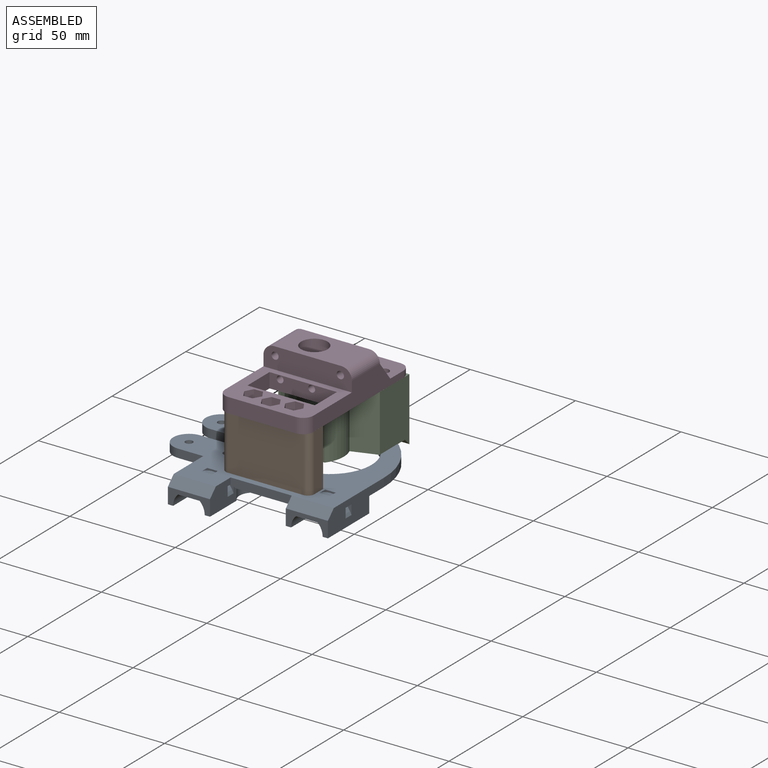
[diagram: assembled view]
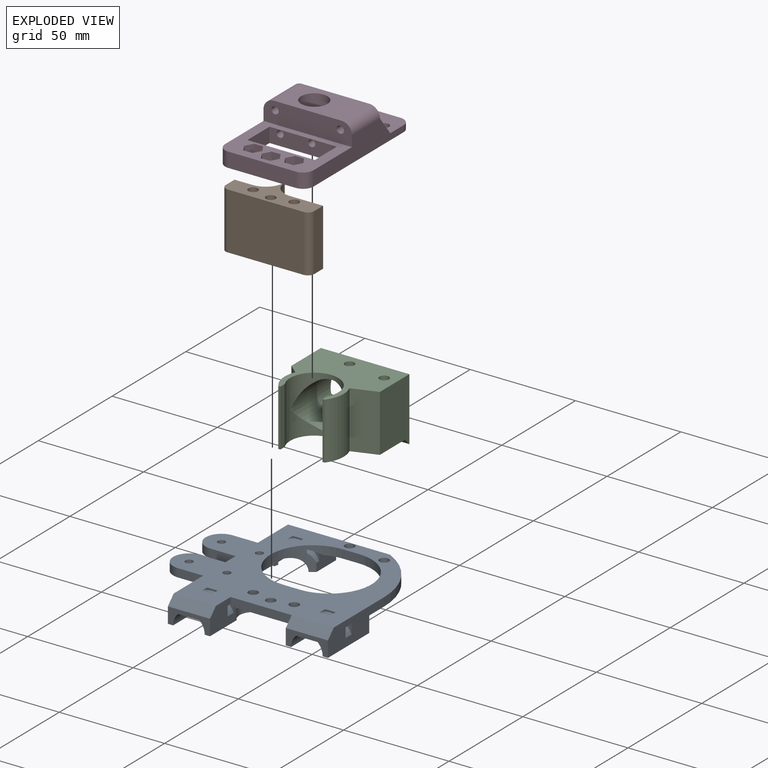
[diagram: exploded view]
GUIDED TOUR — MATED ASSEMBLY (Onshape document 0867b64cb2f1b199d1362405, AutoMate assembly 0867b64cb2f1b199d1362405_662ed76e84d77eaf1cc79daf_90248852c6753fdb1060dd7a_default)

This assembly has 4 components, labeled P0..P3 below (a component is one placed occurrence of a part; the same part can appear more than once), held together by 2 mates. A mate is a constraint between two components; its type names the relative motion it leaves free:
  PLANAR — leaves sliding in the plane through the listed point (normal = the listed direction) and rotation about that normal free.
Axis/direction vectors are unit vectors and 'through' points are millimeter coordinates, both in the assembly's world frame.

MATES
  1. PLANAR "Planar 2": P3 <-> P2, direction (0.000, 0.000, -1.000) through (25.18, -9.65, 2.86) mm
  2. PLANAR "Planar 3": P1 <-> P0, direction (0.000, 0.000, -1.000) through (24.94, -42.22, -24.05) mm

ASSEMBLY ORDER
  1. P2 — the base component [order verified]
  2. P0 [order verified]
  3. P1 [order verified]
  4. P3 [order verified]
(P0 verified with a relaxed clearance tolerance: the source model stores slight part interference there.)
Order-tag legend:
  [order verified] — this step's position reverses a verified removal order: the component was checked to insert without passing through the ones already placed.

Of the 4 components, 2 carry the full construction recipe — the FeatureScript program that regenerates the part's solid from scratch; the rest are supplied as boundary geometry only.
Each toured component is shown spotlighted twice — in the assembled view, then in the exploded view, where a leader line traces a displaced component back to its assembled socket (saturated green if recipe-attached, orange if geometry-only; every other component desaturated gray) — followed by its recipe or geometry summary and the mates that hold it.
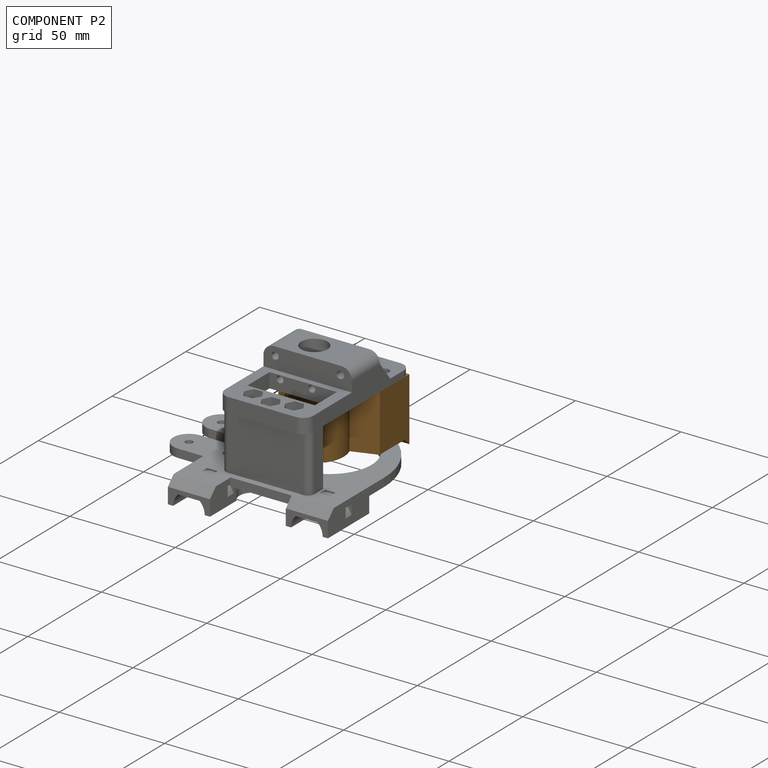
[diagram: component P2 — assembled]
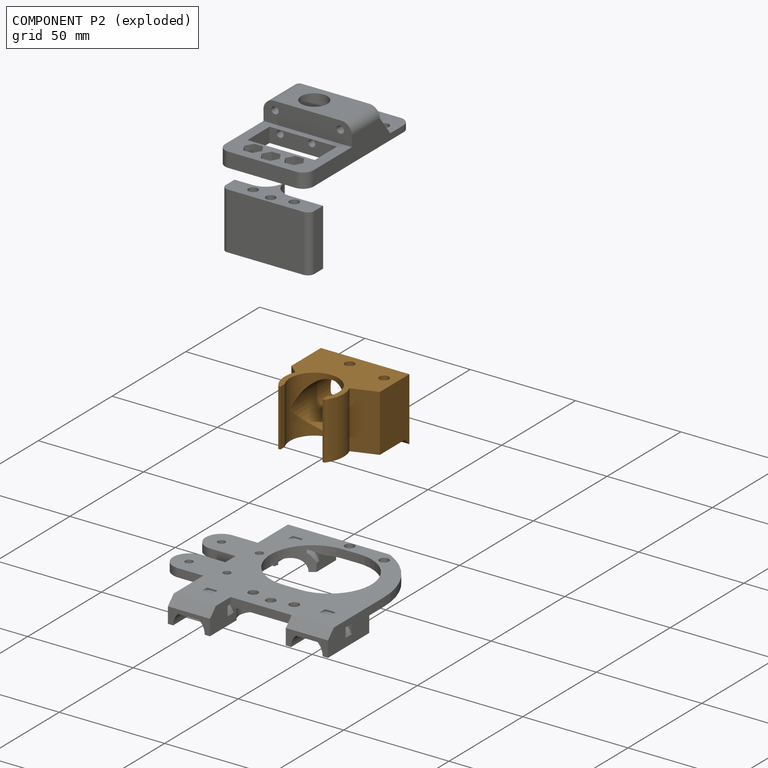
[diagram: component P2 — exploded]
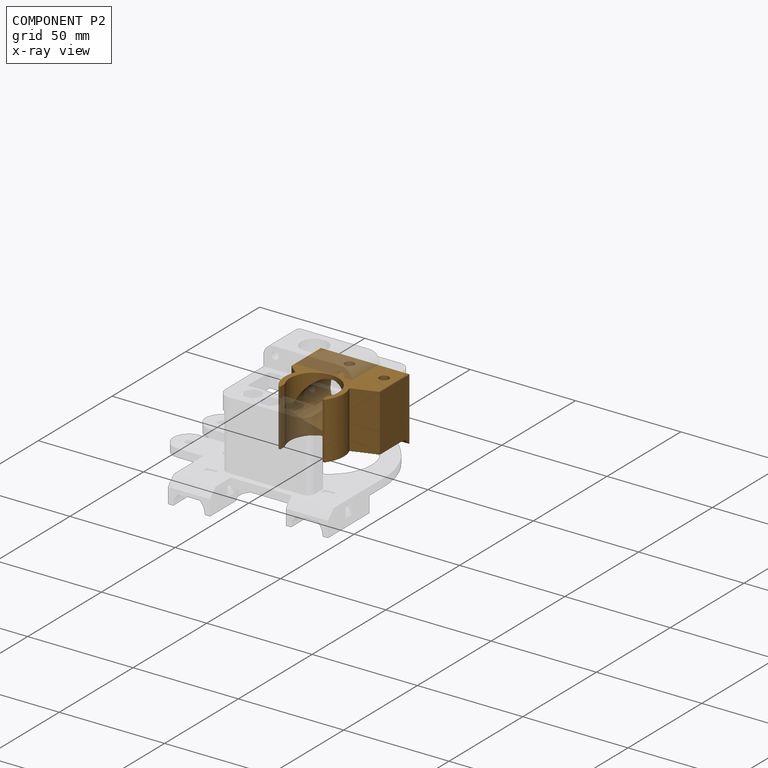
[diagram: component P2 — x-ray view]
COMPONENT P2 — geometry summary (no construction recipe available for this part):
  bounding box: 42.0 x 38.2 x 30.0 mm
  B-rep topology: 1 solid, 29 faces, 170 edges
  volume: 17119 mm^3 (35% of its bounding box)
Held by: PLANAR mate "Planar 2" to P3.
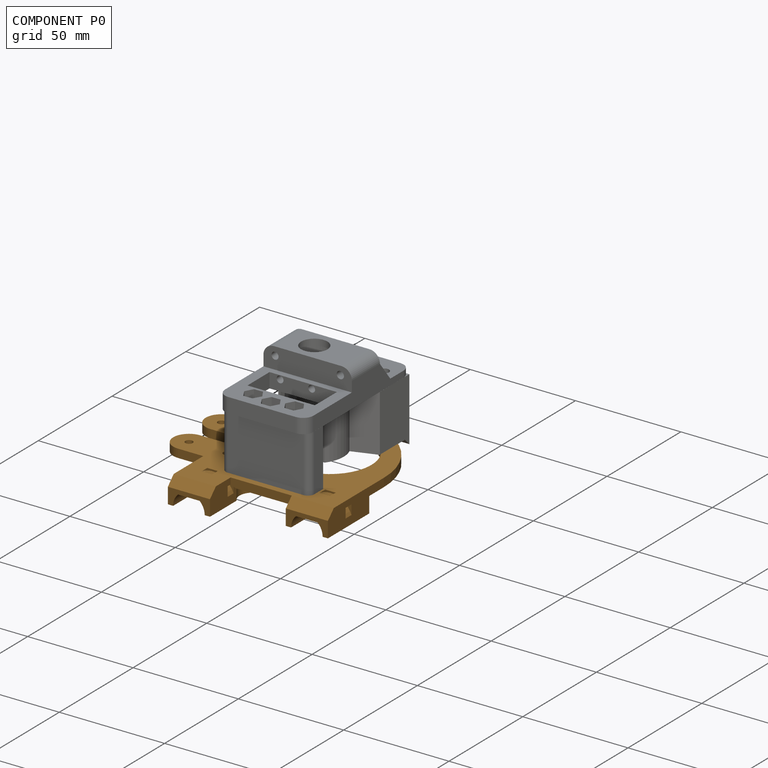
[diagram: component P0 — assembled]
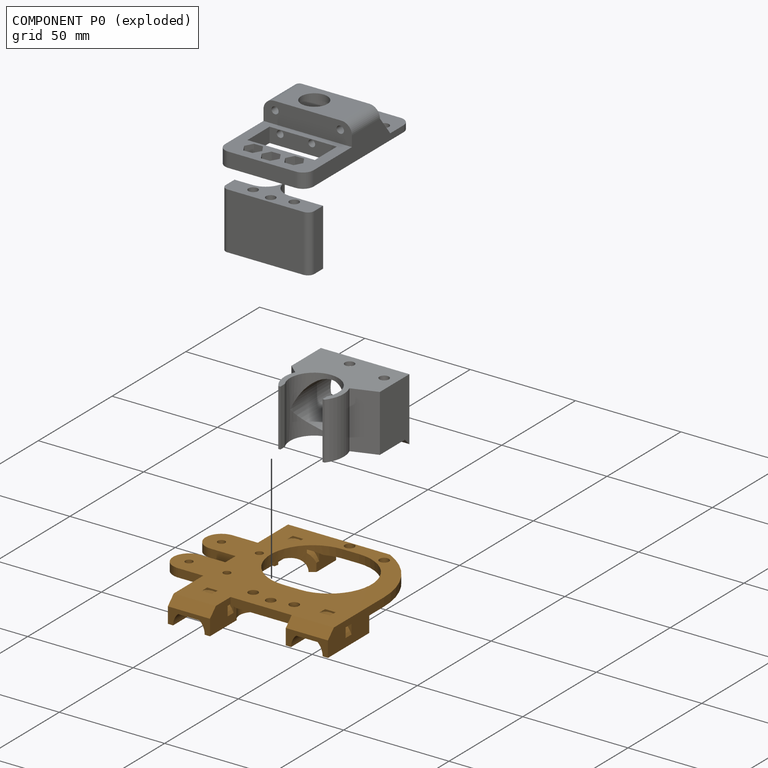
[diagram: component P0 — exploded]
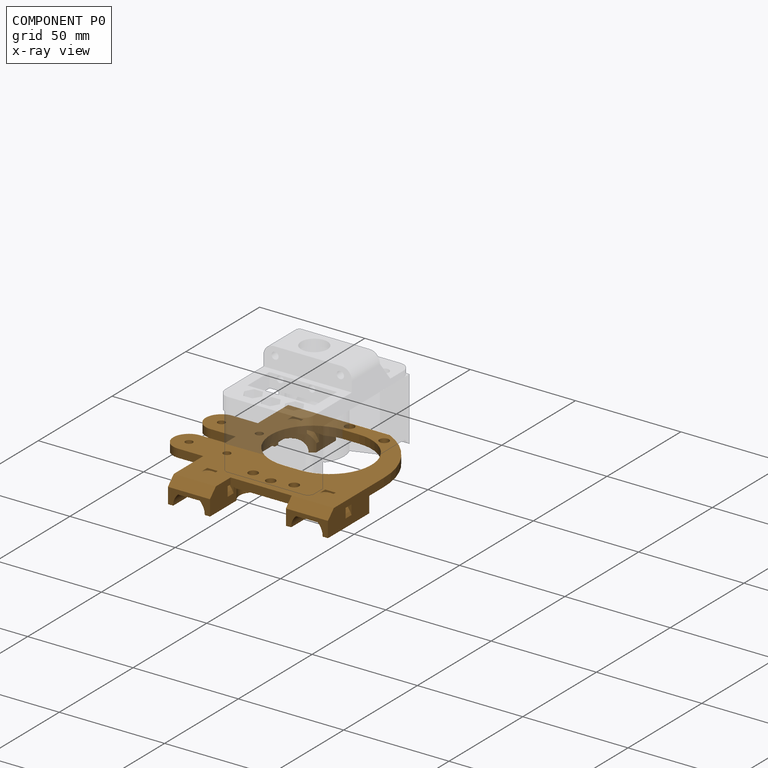
[diagram: component P0 — x-ray view]
COMPONENT P0 — geometry summary (no construction recipe available for this part):
  bounding box: 88.6 x 85.6 x 11.6 mm
  B-rep topology: 1 solid, 107 faces, 654 edges
  volume: 18980 mm^3 (22% of its bounding box)
Held by: PLANAR mate "Planar 3" to P1.
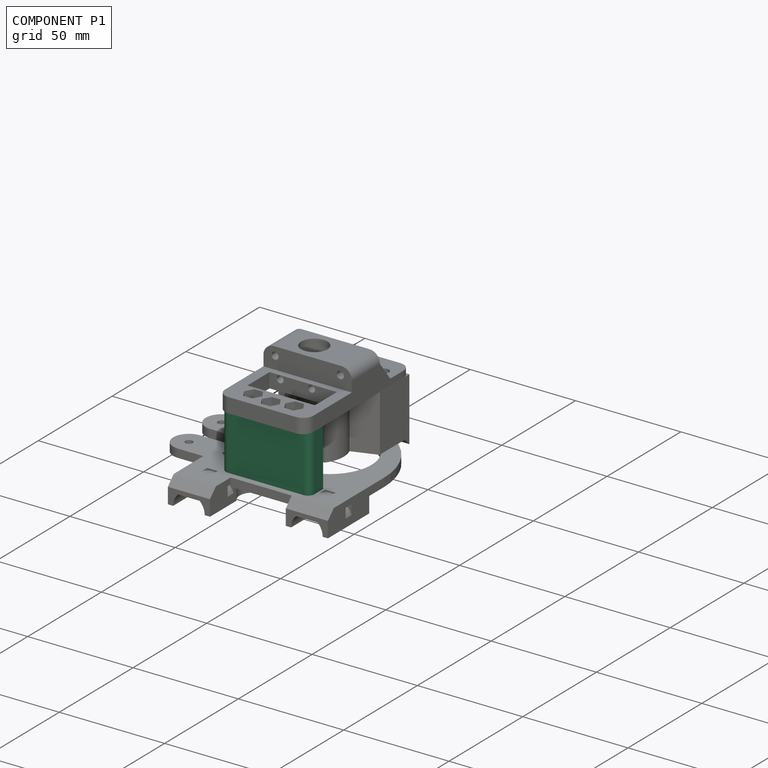
[diagram: component P1 — assembled]
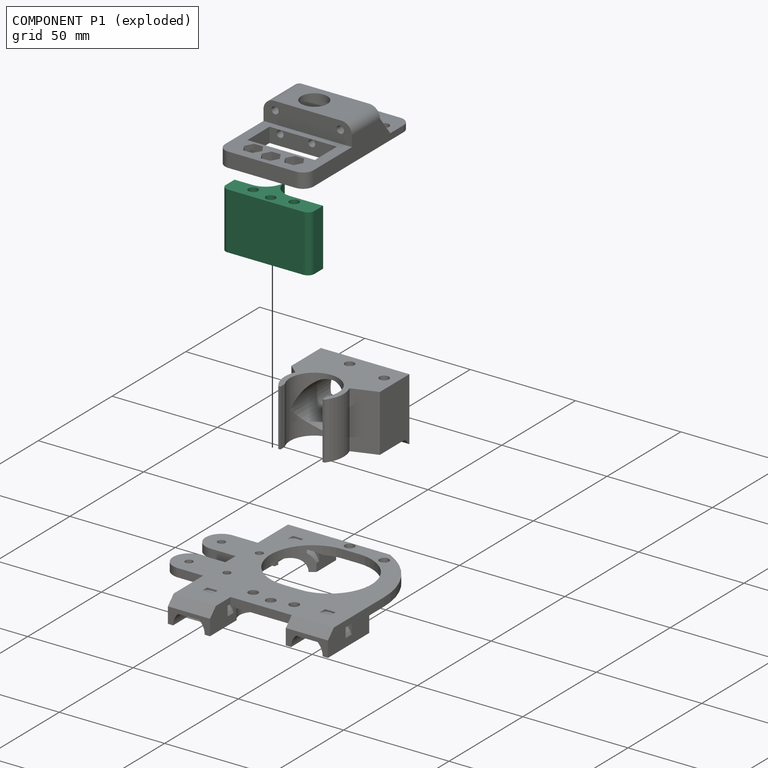
[diagram: component P1 — exploded]
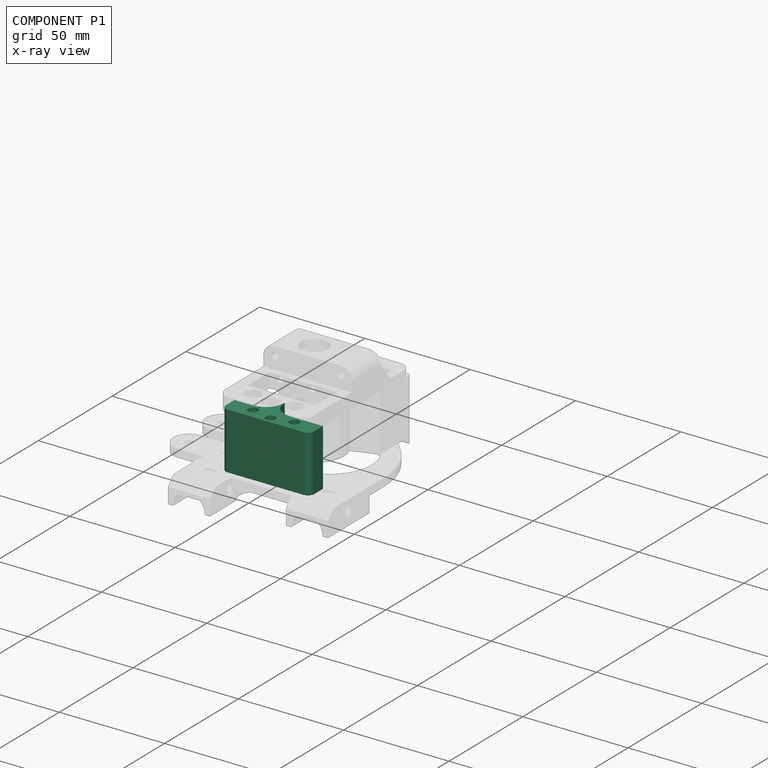
[diagram: component P1 — x-ray view]
COMPONENT P1 — recipe-attached (CADFS 00869236, mesh-verified: the recipe's output STEP matches this component's geometry to below the mesh-comparison resolution (tessellation chordal tolerance ~0.0796 mm)).
Held by: PLANAR mate "Planar 3" to P0.
Construction recipe (FeatureScript — the CAD program that rebuilds this solid; sketch coordinates are in the units given by the * unit suffixes, e.g. mm):

FeatureScript 1511;
import(path : "onshape/std/geometry.fs", version : "1511.0");
import(path : "onshape/std/common.fs", version : "1511.0");
const mm = millimeter;
const VERTEX = EntityType.VERTEX;
const EDGE = EntityType.EDGE;
const FACE = EntityType.FACE;
const BODY = EntityType.BODY;
function v(x, y){return vector(x, y);}
function OD(order){return orderDisambiguation(order);}
function OSD(set){return originalSetDisambiguation(set);}
function TD(topology){return topologyDisambiguation(topology);}
function TDD(query){return trueDependencyDisambiguation(query);}
function sQuery(a, b, c) {return sketchEntityQuery(a, b, c);}

annotation { "Feature Type Name" : "Feature", "Feature Type Description" : "" }
export const myFeature = defineFeature(function(context is Context, id is Id, definition is map)
    precondition{}
    {
        {
            var Q0;
            Q0=qCreatedBy(makeId("Top.planeOp"),FACE);
            var sketch = newSketch(context, id + "F0", { "sketchPlane" : qUnion([Q0])});
            skLineSegment(sketch, "E0.top", {"start": v(-21, -3.5) * mm, "end": v(21, -3.5) * mm});
            skLineSegment(sketch, "E0.left", {"start": v(-21, 1) * mm, "end": v(-21, -3.5) * mm});
            skLineSegment(sketch, "E0.right", {"start": v(21, 1) * mm, "end": v(21, -3.5) * mm});
            skCircle(sketch, "E1", {"center": v(0, 0) * mm, "radius": 2.25 * mm});
            skCircle(sketch, "E2", {"center": v(9.75, 2) * mm, "radius": 2.25 * mm});
            skCircle(sketch, "E3.MirrorC", {"center": v(-9.75, 2) * mm, "radius": 2.25 * mm});
            skPoint(sketch, "E4.orphan", {"position": v(21, 5.5) * mm});
            skLineSegment(sketch, "E5", {"start": v(21, 5.5) * mm, "end": v(21, 1) * mm});
            skLineSegment(sketch, "E6", {"start": v(21, 5.5) * mm, "end": v(-21, 5.44) * mm});
            skLineSegment(sketch, "E7", {"start": v(-21, 1) * mm, "end": v(-21, 5.44) * mm});
            skLineSegment(sketch, "E8", {"start": v(-3.5, 5.46) * mm, "end": v(-3.5, 14.46) * mm, "construction": true});
            skArc(sketch, "E9", {"start": v(-3.5, 14.46) * mm, "mid": v(-0.6, 7.83) * mm, "end": v(6.25, 5.48) * mm});
            skArc(sketch, "E10.MirrorCS", {"start": v(-3.5, 14.46) * mm, "mid": v(-6.4, 7.83) * mm, "end": v(-13.25, 5.48) * mm});
            skSolve(sketch);
        }
        {
            var Q0;
            Q0 = qSketchRegion(id + "F0", true);
            extrude(context, id + "F1", {"entities" : qUnion([Q0]), "depth" : 27 * mm, "offsetDistance" : 25 * mm});
        }
        {
            var Q0;
            Q0=makeQuery(id+"F1.opExtrude","SWEPT_EDGE",EDGE,{"disambiguationData":[OSD([sQuery(id+"F0.wireOp",EDGE,"E0.top"),sQuery(id+"F0.wireOp",EDGE,"E0.right")])]});
            var Q1;
            Q1=makeQuery(id+"F1.opExtrude","SWEPT_EDGE",EDGE,{"disambiguationData":[OSD([sQuery(id+"F0.wireOp",EDGE,"E0.top"),sQuery(id+"F0.wireOp",EDGE,"E0.left")])]});
            fillet(context, id + "F2", {"entities" : qUnion([Q0, Q1]), "radius" : 3 * mm, "tangentPropagation" : true, "allowEdgeOverflow" : false});
        }
    });
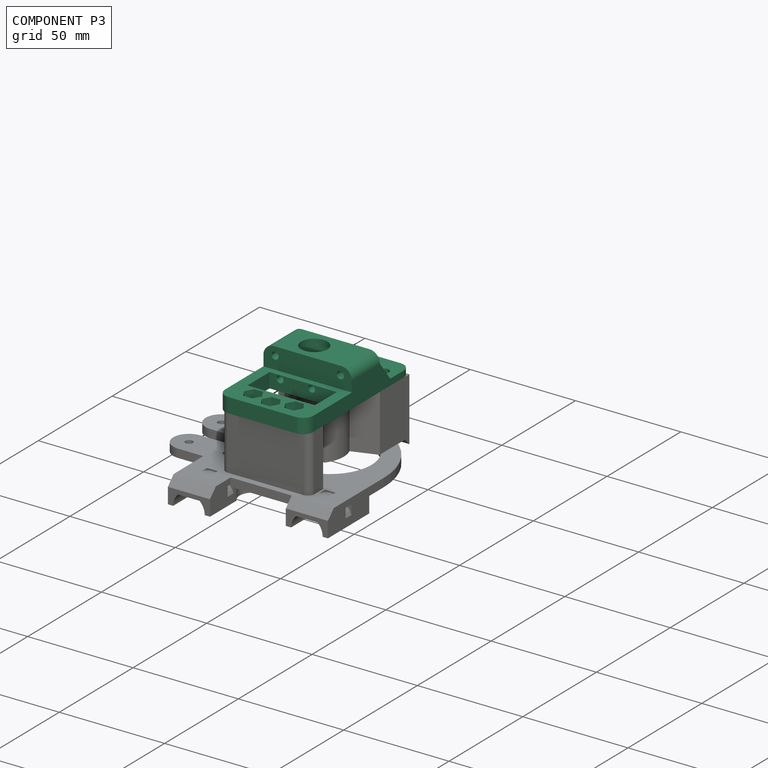
[diagram: component P3 — assembled]
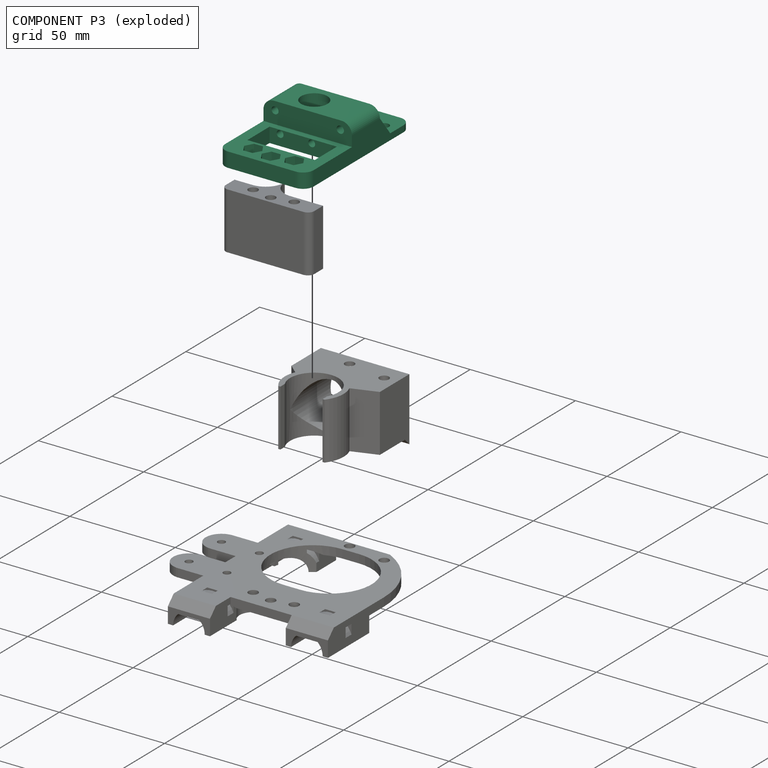
[diagram: component P3 — exploded]
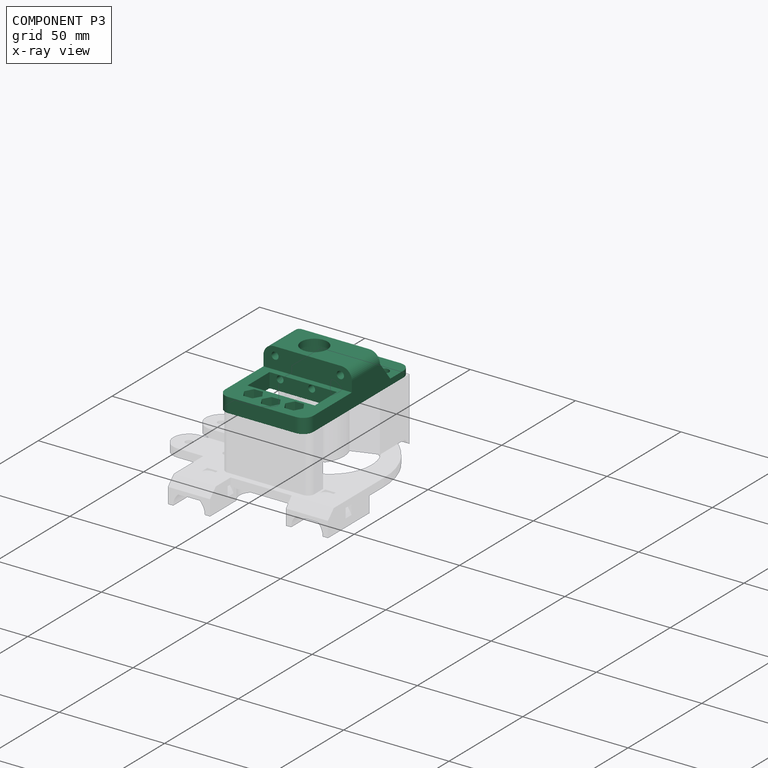
[diagram: component P3 — x-ray view]
COMPONENT P3 — recipe-attached (CADFS 00869235, mesh-verified: the recipe's output STEP matches this component's geometry to below the mesh-comparison resolution (tessellation chordal tolerance ~0.126 mm)).
Held by: PLANAR mate "Planar 2" to P2.
Construction recipe (FeatureScript — the CAD program that rebuilds this solid; sketch coordinates are in the units given by the * unit suffixes, e.g. mm):

FeatureScript 1511;
import(path : "onshape/std/geometry.fs", version : "1511.0");
import(path : "onshape/std/common.fs", version : "1511.0");
const mm = millimeter;
const VERTEX = EntityType.VERTEX;
const EDGE = EntityType.EDGE;
const FACE = EntityType.FACE;
const BODY = EntityType.BODY;
function v(x, y){return vector(x, y);}
function OD(order){return orderDisambiguation(order);}
function OSD(set){return originalSetDisambiguation(set);}
function TD(topology){return topologyDisambiguation(topology);}
function TDD(query){return trueDependencyDisambiguation(query);}
function sQuery(a, b, c) {return sketchEntityQuery(a, b, c);}

annotation { "Feature Type Name" : "Feature", "Feature Type Description" : "" }
export const myFeature = defineFeature(function(context is Context, id is Id, definition is map)
    precondition{}
    {
        {
            var Q0;
            Q0=qCreatedBy(makeId("Top.planeOp"),FACE);
            var sketch = newSketch(context, id + "F0", { "sketchPlane" : qUnion([Q0])});
            skLineSegment(sketch, "E0.bottom", {"start": v(-21, 40) * mm, "end": v(21, 40) * mm});
            skLineSegment(sketch, "E0.top", {"start": v(-21, -31) * mm, "end": v(21, -31) * mm});
            skLineSegment(sketch, "E0.left", {"start": v(-21, 40) * mm, "end": v(-21, -31) * mm});
            skLineSegment(sketch, "E0.right", {"start": v(21, 40) * mm, "end": v(21, -31) * mm});
            skLineSegment(sketch, "E1", {"start": v(21, 0) * mm, "end": v(-21, 0) * mm});
            skLineSegment(sketch, "E2", {"start": v(-21, 19) * mm, "end": v(21, 19) * mm});
            skLineSegment(sketch, "E3.bottom", {"start": v(-16, -3) * mm, "end": v(16, -3) * mm});
            skLineSegment(sketch, "E3.top", {"start": v(-16, -18) * mm, "end": v(16, -18) * mm});
            skLineSegment(sketch, "E3.left", {"start": v(-16, -3) * mm, "end": v(-16, -18) * mm});
            skLineSegment(sketch, "E3.right", {"start": v(16, -3) * mm, "end": v(16, -18) * mm});
            skCircle(sketch, "E4", {"center": v(0, -25) * mm, "radius": 2.25 * mm});
            skCircle(sketch, "E5", {"center": v(-9.75, -23) * mm, "radius": 2.25 * mm});
            skCircle(sketch, "E6", {"center": v(9.75, -23) * mm, "radius": 2.25 * mm});
            skCircle(sketch, "E7", {"center": v(-3.5, 33.5) * mm, "radius": 2.25 * mm});
            skCircle(sketch, "E8", {"center": v(15, 30.5) * mm, "radius": 2.25 * mm});
            skLineSegment(sketch, "E9", {"start": v(-21, 9.5) * mm, "end": v(21, 9.5) * mm, "construction": true});
            skSolve(sketch);
        }
        {
            var Q0;
            {var subQ0=sQuery(id+"F0.wireOp",EDGE,"E0.top");Q0=makeQuery(id+"F0.imprint","IMPRINT",FACE,{"disambiguationData":[TD([[makeQuery(id+"F0.imprint","IMPRINT",EDGE,{"derivedFrom":subQ0}),1.0]])]});}
            extrude(context, id + "F1", {"entities" : qUnion([Q0]), "depth" : 7 * mm, "offsetDistance" : 25 * mm});
        }
        {
            var Q0;
            {var subQ0=sQuery(id+"F0.wireOp",EDGE,"E0.bottom");Q0=makeQuery(id+"F0.imprint","IMPRINT",FACE,{"disambiguationData":[TD([[makeQuery(id+"F0.imprint","IMPRINT",EDGE,{"derivedFrom":subQ0}),-1.0]])]});}
            extrude(context, id + "F2", {"entities" : qUnion([Q0]), "depth" : 3 * mm, "offsetDistance" : 25 * mm});
        }
        {
            var Q0;
            {var subQ0=sQuery(id+"F0.wireOp",EDGE,"E1");Q0=makeQuery(id+"F0.imprint","IMPRINT",FACE,{"disambiguationData":[TD([[makeQuery(id+"F0.imprint","IMPRINT",EDGE,{"derivedFrom":subQ0}),-1.0]])]});}
            extrude(context, id + "F3", {"entities" : qUnion([Q0]), "operationType" : NewBodyOperationType.ADD, "depth" : 17 * mm, "offsetDistance" : 25 * mm});
        }
        {
            var Q0;
            Q0=makeQuery(id+"F1.opExtrude","SWEPT_EDGE",EDGE,{"disambiguationData":[OSD([sQuery(id+"F0.wireOp",EDGE,"E0.top"),sQuery(id+"F0.wireOp",EDGE,"E0.left")])]});
            var Q1;
            Q1=makeQuery(id+"F1.opExtrude","SWEPT_EDGE",EDGE,{"disambiguationData":[OSD([sQuery(id+"F0.wireOp",EDGE,"E0.top"),sQuery(id+"F0.wireOp",EDGE,"E0.right")])]});
            fillet(context, id + "F4", {"entities" : qUnion([Q0, Q1]), "radius" : 5 * mm, "tangentPropagation" : true, "allowEdgeOverflow" : false});
        }
        {
            var Q0;
            Q0=makeQuery(id+"F2.opExtrude","SWEPT_EDGE",EDGE,{"disambiguationData":[OSD([sQuery(id+"F0.wireOp",EDGE,"E0.bottom"),sQuery(id+"F0.wireOp",EDGE,"E0.left")])]});
            var Q1;
            Q1=makeQuery(id+"F2.opExtrude","SWEPT_EDGE",EDGE,{"disambiguationData":[OSD([sQuery(id+"F0.wireOp",EDGE,"E0.bottom"),sQuery(id+"F0.wireOp",EDGE,"E0.right")])]});
            var Q2;
            Q2=makeQuery(id+"F3.opExtrude","CAP_EDGE",EDGE,{"disambiguationData":[OSD([sQuery(id+"F0.wireOp",EDGE,"E0.right")])],"isStart":false});
            var Q3;
            Q3=makeQuery(id+"F3.opExtrude","CAP_EDGE",EDGE,{"disambiguationData":[OSD([sQuery(id+"F0.wireOp",EDGE,"E0.left")])],"isStart":false});
            fillet(context, id + "F5", {"entities" : qUnion([Q0, Q1, Q2, Q3]), "radius" : 5 * mm, "tangentPropagation" : true, "allowEdgeOverflow" : false});
        }
        {
            var Q0;
            {var subQ0=sQuery(id+"F0.wireOp",EDGE,"E2");var subQ1=sQuery(id+"F0.wireOp",EDGE,"E1");var subQ2=sQuery(id+"F0.wireOp",EDGE,"E0.right");var subQ3=sQuery(id+"F0.wireOp",EDGE,"E0.left");Q0=makeQuery(id+"F3.boolean.opBoolean","MERGE",FACE,{"derivedFrom":[makeQuery(id+"F1.opExtrude","CAP_FACE",FACE,{"disambiguationData":[OSD([sQuery(id+"F0.wireOp",EDGE,"E0.top"),subQ3,subQ2,subQ1,sQuery(id+"F0.wireOp",EDGE,"E3.bottom"),sQuery(id+"F0.wireOp",EDGE,"E3.top"),sQuery(id+"F0.wireOp",EDGE,"E3.left"),sQuery(id+"F0.wireOp",EDGE,"E3.right")])],"isStart":true}),makeQuery(id+"F2.opExtrude","CAP_FACE",FACE,{"disambiguationData":[OSD([sQuery(id+"F0.wireOp",EDGE,"E0.bottom"),subQ3,subQ2,subQ0])],"isStart":true}),makeQuery(id+"F3.opExtrude","CAP_FACE",FACE,{"disambiguationData":[OSD([subQ3,subQ2,subQ1,subQ0])],"isStart":true})]});}
            var sketch = newSketch(context, id + "F6", { "sketchPlane" : qUnion([Q0])});
            skCircle(sketch, "E10", {"center": v(-3.5, -9.5) * mm, "radius": 6.25 * mm});
            skCircle(sketch, "E11", {"center": v(-3.5, -9.5) * mm, "radius": 8.25 * mm});
            skSolve(sketch);
        }
        {
            var Q0;
            Q0=makeQuery(id+"F6.imprint","IMPRINT",FACE,{"disambiguationData":[TD([[makeQuery(id+"F6.imprint","IMPRINT",EDGE,{"derivedFrom":sQuery(id+"F6.wireOp",EDGE,"E10")}),1.0]])]});
            extrude(context, id + "F7", {"entities" : qUnion([Q0]), "operationType" : NewBodyOperationType.REMOVE, "oppositeDirection" : true, "depth" : 25 * mm, "offsetDistance" : 25 * mm});
        }
        {
            var Q0;
            {var subQ0=sQuery(id+"F0.wireOp",EDGE,"E0.left");Q0=makeQuery(id+"F3.boolean.opBoolean","MERGE",FACE,{"derivedFrom":[makeQuery(id+"F1.opExtrude","SWEPT_FACE",FACE,{"disambiguationData":[OSD([subQ0])]}),makeQuery(id+"F2.opExtrude","SWEPT_FACE",FACE,{"disambiguationData":[OSD([subQ0])]}),makeQuery(id+"F3.opExtrude","SWEPT_FACE",FACE,{"disambiguationData":[OSD([subQ0])]})]});}
            var sketch = newSketch(context, id + "F8", { "sketchPlane" : qUnion([Q0])});
            skLineSegment(sketch, "E12", {"start": v(-19, 12) * mm, "end": v(-26, 3) * mm});
            skLineSegment(sketch, "E13", {"start": v(-26, 3) * mm, "end": v(-19, 3) * mm});
            skLineSegment(sketch, "E14", {"start": v(-19, 3) * mm, "end": v(-19, 12) * mm});
            skSolve(sketch);
        }
        {
            var Q0;
            Q0=makeQuery(id+"F8.imprint","IMPRINT",FACE,{"disambiguationData":[TD([[makeQuery(id+"F8.imprint","IMPRINT",EDGE,{"derivedFrom":sQuery(id+"F8.wireOp",EDGE,"E12")}),1.0]])]});
            extrude(context, id + "F9", {"entities" : qUnion([Q0]), "operationType" : NewBodyOperationType.ADD, "oppositeDirection" : true, "depth" : 3 * mm, "offsetDistance" : 25 * mm});
        }
        {
            var Q0;
            {var subQ0=sQuery(id+"F0.wireOp",EDGE,"E0.right");Q0=makeQuery(id+"F3.boolean.opBoolean","MERGE",FACE,{"derivedFrom":[makeQuery(id+"F1.opExtrude","SWEPT_FACE",FACE,{"disambiguationData":[OSD([subQ0])]}),makeQuery(id+"F2.opExtrude","SWEPT_FACE",FACE,{"disambiguationData":[OSD([subQ0])]}),makeQuery(id+"F3.opExtrude","SWEPT_FACE",FACE,{"disambiguationData":[OSD([subQ0])]})]});}
            var sketch = newSketch(context, id + "F10", { "sketchPlane" : qUnion([Q0])});
            skLineSegment(sketch, "E15", {"start": v(19, 12) * mm, "end": v(26, 3) * mm});
            skLineSegment(sketch, "E16", {"start": v(26, 3) * mm, "end": v(19, 3) * mm});
            skLineSegment(sketch, "E17", {"start": v(19, 3) * mm, "end": v(19, 12) * mm});
            skSolve(sketch);
        }
        {
            var Q0;
            Q0=makeQuery(id+"F10.imprint","IMPRINT",FACE,{"disambiguationData":[TD([[makeQuery(id+"F10.imprint","IMPRINT",EDGE,{"derivedFrom":sQuery(id+"F10.wireOp",EDGE,"E15")}),-1.0]])]});
            extrude(context, id + "F11", {"entities" : qUnion([Q0]), "operationType" : NewBodyOperationType.ADD, "oppositeDirection" : true, "depth" : 3 * mm, "offsetDistance" : 25 * mm});
        }
        {
            var Q0;
            Q0=makeQuery(id+"F3.opExtrude","SWEPT_FACE",FACE,{"disambiguationData":[OSD([sQuery(id+"F0.wireOp",EDGE,"E1")])]});
            var sketch = newSketch(context, id + "F12", { "sketchPlane" : qUnion([Q0])});
            skCircle(sketch, "E18", {"center": v(-15.5, 13) * mm, "radius": 1.68 * mm});
            skCircle(sketch, "E19", {"center": v(15.5, 13) * mm, "radius": 1.75 * mm});
            skSolve(sketch);
        }
        {
            var Q0;
            Q0 = qSketchRegion(id + "F12", true);
            extrude(context, id + "F13", {"entities" : qUnion([Q0]), "operationType" : NewBodyOperationType.REMOVE, "oppositeDirection" : true, "depth" : 25 * mm, "offsetDistance" : 25 * mm});
        }
        {
            var Q0;
            Q0 = qSketchRegion(id + "F6", true);
            var Q1;
            Q1=sQuery(id+"F6.wireOp",EDGE,"E11");
            extrude(context, id + "F14", {"entities" : qUnion([Q0]), "operationType" : NewBodyOperationType.REMOVE, "surfaceEntities" : qUnion([Q1]), "oppositeDirection" : true, "depth" : 14 * mm, "offsetDistance" : 25 * mm});
        }
        {
            var Q0;
            Q0=makeQuery(id+"F3.opExtrude","SWEPT_FACE",FACE,{"disambiguationData":[OSD([sQuery(id+"F0.wireOp",EDGE,"E2")])]});
            var sketch = newSketch(context, id + "F15", { "sketchPlane" : qUnion([Q0])});
            skCircle(sketch, "E20", {"center": v(-4, 5.19) * mm, "radius": 1.63 * mm});
            skCircle(sketch, "E21", {"center": v(11, 5.19) * mm, "radius": 1.63 * mm});
            skLineSegment(sketch, "E22", {"start": v(-4, 5.19) * mm, "end": v(11, 5.19) * mm, "construction": true});
            skPoint(sketch, "E23", {"position": v(3.5, 5.19) * mm});
            skSolve(sketch);
        }
        {
            var Q0;
            Q0=makeQuery(id+"F15.imprint","IMPRINT",FACE,{"disambiguationData":[TD([[makeQuery(id+"F15.imprint","IMPRINT",EDGE,{"derivedFrom":sQuery(id+"F15.wireOp",EDGE,"E20")}),1.0]])]});
            var Q1;
            Q1=makeQuery(id+"F15.imprint","IMPRINT",FACE,{"disambiguationData":[TD([[makeQuery(id+"F15.imprint","IMPRINT",EDGE,{"derivedFrom":sQuery(id+"F15.wireOp",EDGE,"E21")}),1.0]])]});
            extrude(context, id + "F16", {"entities" : qUnion([Q0, Q1]), "operationType" : NewBodyOperationType.REMOVE, "oppositeDirection" : true, "depth" : 30 * mm, "offsetDistance" : 25 * mm});
        }
        {
            var Q0;
            Q0=makeQuery(id+"F1.opExtrude","CAP_FACE",FACE,{"disambiguationData":[OSD([sQuery(id+"F0.wireOp",EDGE,"E0.top"),sQuery(id+"F0.wireOp",EDGE,"E0.left"),sQuery(id+"F0.wireOp",EDGE,"E0.right"),sQuery(id+"F0.wireOp",EDGE,"E1"),sQuery(id+"F0.wireOp",EDGE,"E3.bottom"),sQuery(id+"F0.wireOp",EDGE,"E3.top"),sQuery(id+"F0.wireOp",EDGE,"E3.left"),sQuery(id+"F0.wireOp",EDGE,"E3.right"),sQuery(id+"F0.wireOp",EDGE,"E4"),sQuery(id+"F0.wireOp",EDGE,"E5"),sQuery(id+"F0.wireOp",EDGE,"E6")])],"isStart":false});
            var sketch = newSketch(context, id + "F17", { "sketchPlane" : qUnion([Q0])});
            skCircle(sketch, "E24.cCircle", {"center": v(-9.75, -23) * mm, "radius": 4.25 * mm, "construction": true});
            skLineSegment(sketch, "E24.0", {"start": v(-7.69, -19.28) * mm, "end": v(-5.5, -22.93) * mm});
            skLineSegment(sketch, "E24.1", {"start": v(-5.5, -22.93) * mm, "end": v(-7.56, -26.64) * mm});
            skLineSegment(sketch, "E24.2", {"start": v(-7.56, -26.64) * mm, "end": v(-11.81, -26.72) * mm});
            skLineSegment(sketch, "E24.3", {"start": v(-11.81, -26.72) * mm, "end": v(-14, -23.07) * mm});
            skLineSegment(sketch, "E24.4", {"start": v(-14, -23.07) * mm, "end": v(-11.94, -19.36) * mm});
            skLineSegment(sketch, "E24.5", {"start": v(-11.94, -19.36) * mm, "end": v(-7.69, -19.28) * mm});
            skCircle(sketch, "E25.cCircle", {"center": v(0, -25) * mm, "radius": 4.25 * mm, "construction": true});
            skLineSegment(sketch, "E25.0", {"start": v(2.08, -21.3) * mm, "end": v(4.25, -24.95) * mm});
            skLineSegment(sketch, "E25.1", {"start": v(4.25, -24.95) * mm, "end": v(2.17, -28.65) * mm});
            skLineSegment(sketch, "E25.2", {"start": v(2.17, -28.65) * mm, "end": v(-2.08, -28.7) * mm});
            skLineSegment(sketch, "E25.3", {"start": v(-2.08, -28.7) * mm, "end": v(-4.25, -25.05) * mm});
            skLineSegment(sketch, "E25.4", {"start": v(-4.25, -25.05) * mm, "end": v(-2.17, -21.35) * mm});
            skLineSegment(sketch, "E25.5", {"start": v(-2.17, -21.35) * mm, "end": v(2.08, -21.3) * mm});
            skCircle(sketch, "E26.cCircle", {"center": v(9.75, -23) * mm, "radius": 4.25 * mm, "construction": true});
            skLineSegment(sketch, "E26.0", {"start": v(11.8, -19.28) * mm, "end": v(14, -22.92) * mm});
            skLineSegment(sketch, "E26.1", {"start": v(14, -22.92) * mm, "end": v(11.94, -26.64) * mm});
            skLineSegment(sketch, "E26.2", {"start": v(11.94, -26.64) * mm, "end": v(7.7, -26.72) * mm});
            skLineSegment(sketch, "E26.3", {"start": v(7.7, -26.72) * mm, "end": v(5.5, -23.08) * mm});
            skLineSegment(sketch, "E26.4", {"start": v(5.5, -23.08) * mm, "end": v(7.56, -19.36) * mm});
            skLineSegment(sketch, "E26.5", {"start": v(7.56, -19.36) * mm, "end": v(11.8, -19.28) * mm});
            skSolve(sketch);
        }
        {
            var Q0;
            Q0=makeQuery(id+"F17.imprint","IMPRINT",FACE,{"disambiguationData":[TD([[makeQuery(id+"F17.imprint","IMPRINT",EDGE,{"derivedFrom":sQuery(id+"F17.wireOp",EDGE,"E24.0")}),-1.0]])]});
            var Q1;
            Q1=makeQuery(id+"F17.imprint","IMPRINT",FACE,{"disambiguationData":[TD([[makeQuery(id+"F17.imprint","IMPRINT",EDGE,{"derivedFrom":sQuery(id+"F17.wireOp",EDGE,"E25.0")}),-1.0]])]});
            var Q2;
            Q2=makeQuery(id+"F17.imprint","IMPRINT",FACE,{"disambiguationData":[TD([[makeQuery(id+"F17.imprint","IMPRINT",EDGE,{"derivedFrom":sQuery(id+"F17.wireOp",EDGE,"E26.0")}),-1.0]])]});
            var Q3;
            Q3 = qConstructionFilter(qBodyType(qCreatedBy(id + "F17" ,EDGE), BodyType.WIRE), ConstructionObject.NO);
            extrude(context, id + "F18", {"entities" : qUnion([Q0, Q1, Q2]), "operationType" : NewBodyOperationType.REMOVE, "surfaceEntities" : qUnion([Q3]), "oppositeDirection" : true, "depth" : 4 * mm, "offsetDistance" : 25 * mm});
        }
    });
PROVENANCE & LICENSES
Assembly (occurrences, transforms, mates, per-part STEP geometry): AutoMate dataset, Zenodo record 7776208, CC0.
Construction recipes: CADFS (HuggingFace VladPyatov/CADFS, CC-BY-4.0, layered over the ABC dataset), FeatureScript reconstruction programs keyed by ABC model id.
Join: ABC meta listings map ABC model id -> Onshape documentId; within a shared document, parts are matched by geometric signature (bounding-box dims + volume at 0.1% relative tolerance, exact B-rep face/solid counts).
Verification: 2 of this assembly's 4 components carry a recipe attachment, and every attachment is mesh-verified: the CADFS STEP and the AutoMate member STEP were compared as meshes in their shared local frame (symmetric sampled-point-to-mesh distance); worst across the 2 attachments: below the mesh-comparison resolution (tessellation chordal tolerance ~0.126 mm) on a 84 mm part.
Renders: orthographic iso camera (az 35 / el 25); the floor grid conveys scale (grid pitch printed in each image; no ruler). In the exploded view each component is displaced by its stored offset vector: the offsets alone carry the explosion direction (mate normal/axis signs are not orientation cues and do not encode it), and separation distances are assigned per mate-chain, not proportionally to assembly-order depth.
